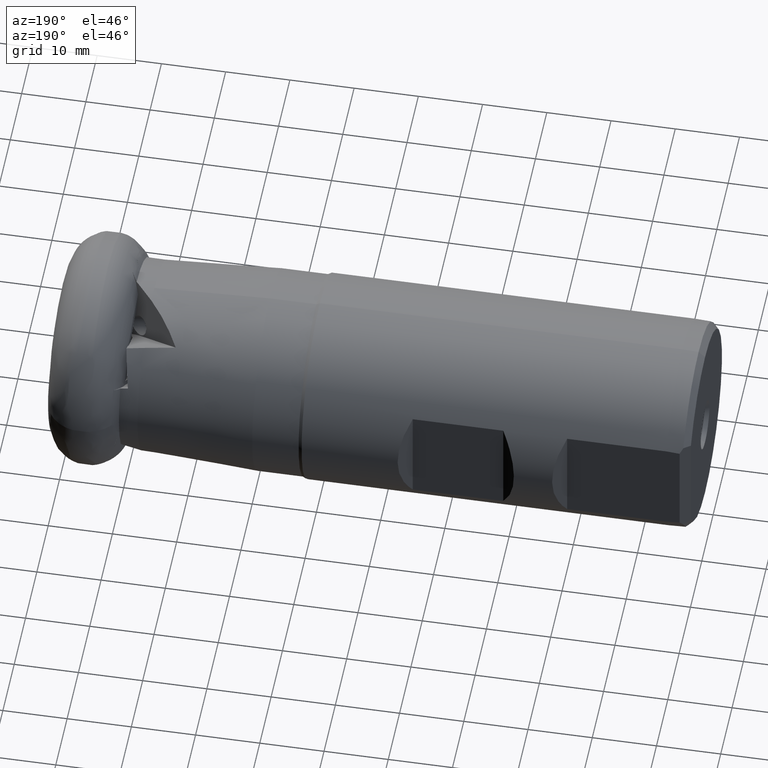
[diagram: clean part render]
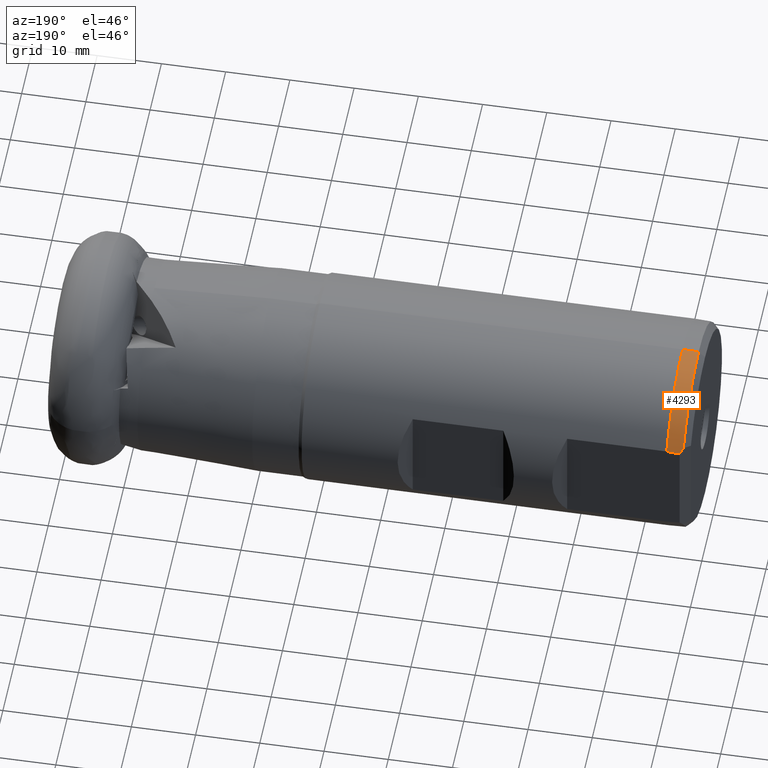
[diagram: same view with one face highlighted and labeled with its STEP entity id]
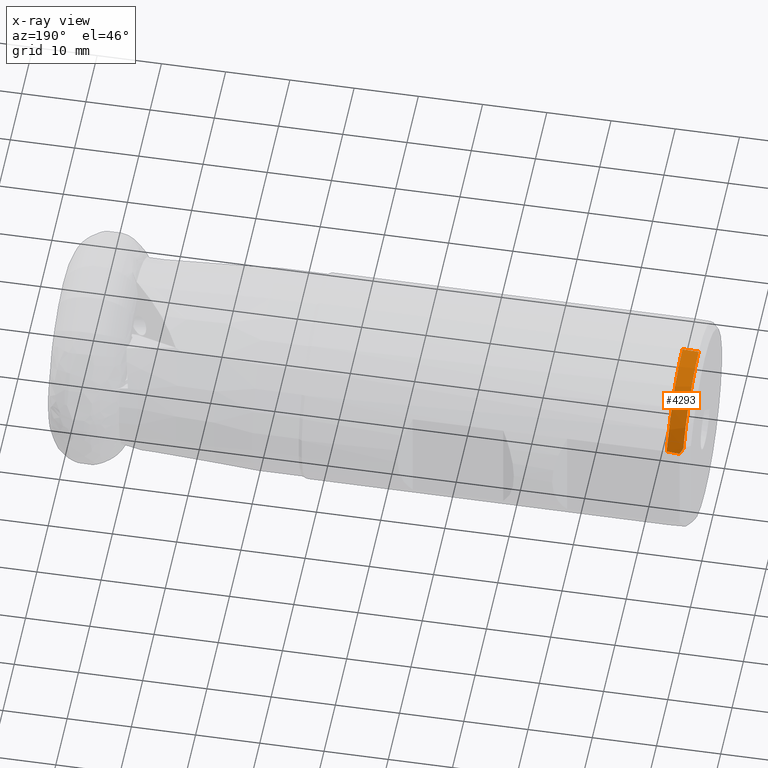
[diagram: x-ray of the same camera — body ghosted, the highlighted face saturated]
A machine part, auxiliary view. The second image highlights one B-rep face of the part: STEP entity #4293.
The next image is the same camera in x-ray: the body ghosted, the highlighted face saturated — about 0% of this face is hidden behind the body in this view.
In plain terms, the highlighted conical surface has half-angle 2.291 deg.
Its self-contained STEP definition (entity closure, byte-faithful):
#21 = EDGE_CURVE ( 'NONE', #872, #3277, #3067, .T. ) ;
#210 = EDGE_CURVE ( 'NONE', #5469, #5291, #998, .T. ) ;
#511 = ORIENTED_EDGE ( 'NONE', *, *, #1681, .T. ) ;
#537 = CARTESIAN_POINT ( 'NONE',  ( -97.75000000000000000, 13.49999999999999800, 8.400000000000003900 ) ) ;
#541 = CARTESIAN_POINT ( 'NONE',  ( -97.40808132776753300, 13.84191867223245800, 7.858054886318341500 ) ) ;
#750 = CIRCLE ( 'NONE', #5282, 15.99999999999998600 ) ;
#791 = CARTESIAN_POINT ( 'NONE',  ( -95.91670182122457800, 14.00000000000000900, 7.690881358004365800 ) ) ;
#820 = DIRECTION ( 'NONE',  ( 0.0000000000000000000, 0.0000000000000000000, -1.000000000000000000 ) ) ;
#872 = VERTEX_POINT ( 'NONE', #5559 ) ;
#941 = CARTESIAN_POINT ( 'NONE',  ( -97.75000000000000000, 13.49999999999999800, 8.400000000000003900 ) ) ;
#978 = CARTESIAN_POINT ( 'NONE',  ( -97.25000000000000000, 14.00000000000000900, 7.579340340689272500 ) ) ;
#998 = CIRCLE ( 'NONE', #2443, 15.90000000000000000 ) ;
#1059 = DIRECTION ( 'NONE',  ( 0.9992009587217896000, 4.894673023213711200E-018, 0.03996803834886576000 ) ) ;
#1236 = CARTESIAN_POINT ( 'NONE',  ( -95.25000000000000000, 1.959434878635763600E-015, 15.99999999999998600 ) ) ;
#1681 = EDGE_CURVE ( 'NONE', #5291, #4312, #2152, .T. ) ;
#1693 = ORIENTED_EDGE ( 'NONE', *, *, #2069, .F. ) ;
#1717 = CONICAL_SURFACE ( 'NONE', #4050, 15.99999999999998600, 0.03997868712328422200 ) ;
#1756 = EDGE_CURVE ( 'NONE', #5469, #872, #3757, .T. ) ;
#2069 = EDGE_CURVE ( 'NONE', #3277, #4312, #750, .T. ) ;
#2152 = LINE ( 'NONE', #4333, #5693 ) ;
#2290 = FACE_OUTER_BOUND ( 'NONE', #2825, .T. ) ;
#2443 = AXIS2_PLACEMENT_3D ( 'NONE', #2734, #5583, #2698 ) ;
#2648 = CARTESIAN_POINT ( 'NONE',  ( -96.58337357962088300, 14.00000000000000900, 7.635348869850891300 ) ) ;
#2698 = DIRECTION ( 'NONE',  ( 0.0000000000000000000, 0.0000000000000000000, -1.000000000000000000 ) ) ;
#2734 = CARTESIAN_POINT ( 'NONE',  ( -97.75000000000000000, 0.0000000000000000000, 0.0000000000000000000 ) ) ;
#2825 = EDGE_LOOP ( 'NONE', ( #4311, #511, #1693, #5397, #4442 ) ) ;
#3067 = B_SPLINE_CURVE_WITH_KNOTS ( 'NONE', 3,
 ( #5922, #2648, #791, #3583 ),
 .UNSPECIFIED., .F., .F.,
 ( 4, 4 ),
 ( 0.03017721151609114400, 0.03218385849374881500 ),
 .UNSPECIFIED. ) ;
#3277 = VERTEX_POINT ( 'NONE', #5378 ) ;
#3361 = DIRECTION ( 'NONE',  ( 0.0000000000000000000, 0.0000000000000000000, -1.000000000000000000 ) ) ;
#3583 = CARTESIAN_POINT ( 'NONE',  ( -95.25000000000000000, 14.00000000000001600, 7.745966692414775400 ) ) ;
#3757 =( BOUNDED_CURVE ( )  B_SPLINE_CURVE ( 3, ( #941, #5178, #541, #978 ),
 .UNSPECIFIED., .F., .T. ) 
 B_SPLINE_CURVE_WITH_KNOTS ( ( 4, 4 ),
 ( 5.705080942613245800, 5.767591300933499800 ),
 .UNSPECIFIED. ) 
 CURVE ( )  GEOMETRIC_REPRESENTATION_ITEM ( )  RATIONAL_B_SPLINE_CURVE ( ( 1.000000000000000000, 0.9996743977662122500, 0.9996743977662122500, 1.000000000000000000 ) ) 
 REPRESENTATION_ITEM ( '' )  );
#4050 = AXIS2_PLACEMENT_3D ( 'NONE', #5956, #4479, #820 ) ;
#4293 = ADVANCED_FACE ( 'NONE', ( #2290 ), #1717, .T. ) ;
#4311 = ORIENTED_EDGE ( 'NONE', *, *, #210, .T. ) ;
#4312 = VERTEX_POINT ( 'NONE', #1236 ) ;
#4333 = CARTESIAN_POINT ( 'NONE',  ( -95.25000000000000000, 1.959434878635763600E-015, 15.99999999999998600 ) ) ;
#4402 = DIRECTION ( 'NONE',  ( 1.000000000000000000, -0.0000000000000000000, -0.0000000000000000000 ) ) ;
#4442 = ORIENTED_EDGE ( 'NONE', *, *, #1756, .F. ) ;
#4449 = CARTESIAN_POINT ( 'NONE',  ( -97.75000000000000000, 1.947188410644291800E-015, 15.90000000000000000 ) ) ;
#4479 = DIRECTION ( 'NONE',  ( 1.000000000000000000, -0.0000000000000000000, -0.0000000000000000000 ) ) ;
#5178 = CARTESIAN_POINT ( 'NONE',  ( -97.57480227914840000, 13.67519772085159800, 8.131697204638687300 ) ) ;
#5282 = AXIS2_PLACEMENT_3D ( 'NONE', #5364, #4402, #3361 ) ;
#5291 = VERTEX_POINT ( 'NONE', #4449 ) ;
#5364 = CARTESIAN_POINT ( 'NONE',  ( -95.25000000000000000, 0.0000000000000000000, 0.0000000000000000000 ) ) ;
#5378 = CARTESIAN_POINT ( 'NONE',  ( -95.25000000000000000, 14.00000000000001600, 7.745966692414775400 ) ) ;
#5397 = ORIENTED_EDGE ( 'NONE', *, *, #21, .F. ) ;
#5469 = VERTEX_POINT ( 'NONE', #537 ) ;
#5559 = CARTESIAN_POINT ( 'NONE',  ( -97.25000000000000000, 14.00000000000000900, 7.579340340689272500 ) ) ;
#5583 = DIRECTION ( 'NONE',  ( 1.000000000000000000, -0.0000000000000000000, -0.0000000000000000000 ) ) ;
#5693 = VECTOR ( 'NONE', #1059, 1000.000000000000200 ) ;
#5922 = CARTESIAN_POINT ( 'NONE',  ( -97.25000000000000000, 14.00000000000000900, 7.579340340689272500 ) ) ;
#5956 = CARTESIAN_POINT ( 'NONE',  ( -95.25000000000000000, 0.0000000000000000000, 0.0000000000000000000 ) ) ;